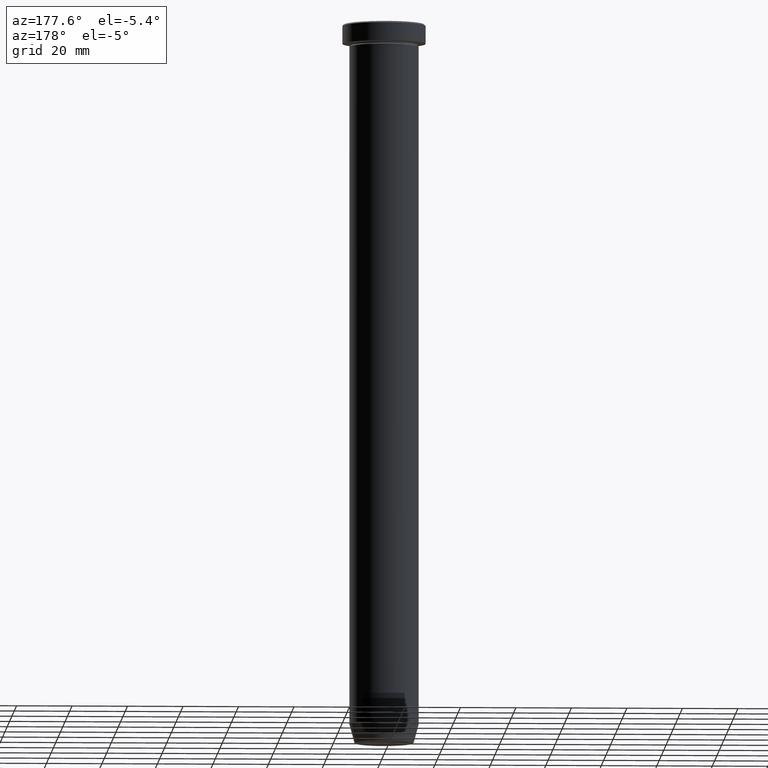
[diagram: clean part render]
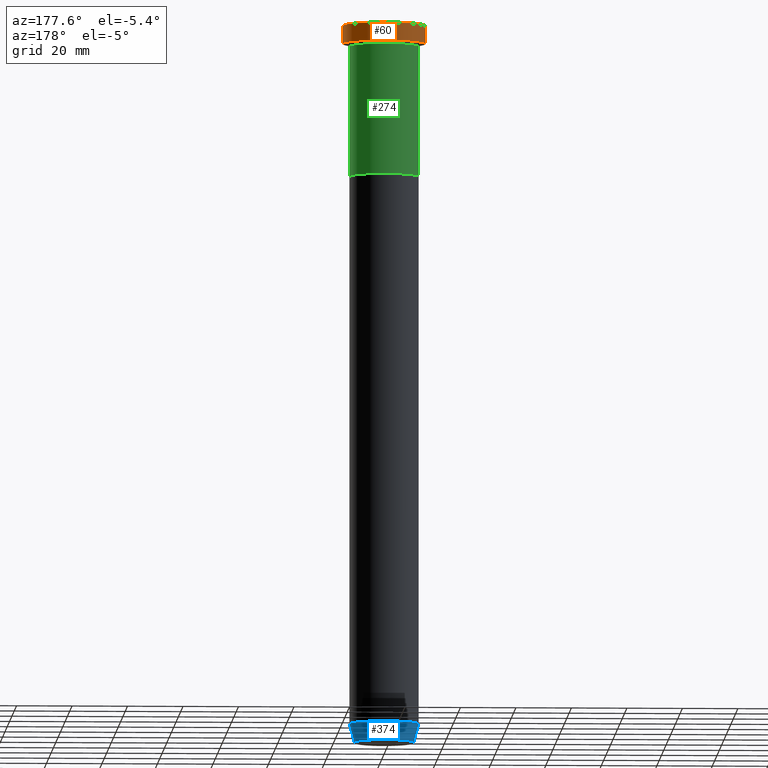
[diagram: same view with three faces highlighted in distinct colors, each labeled with its STEP entity id]
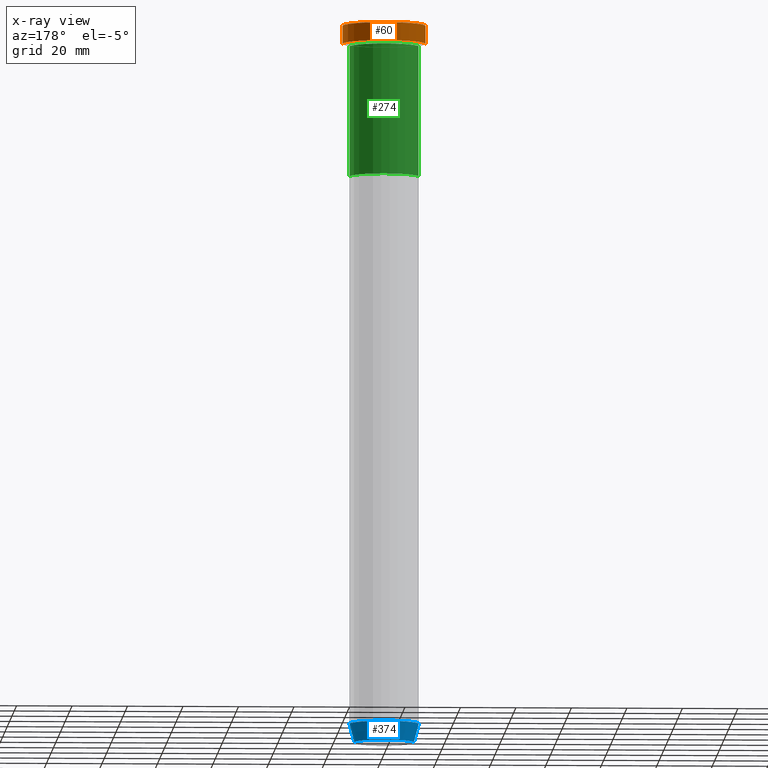
[diagram: x-ray of the same camera — body ghosted, the three highlighted faces saturated]
A machine part, auxiliary view with three faces highlighted in distinct colors.
The next image is the same camera in x-ray (body ghosted, the three faces saturated) — at least one of them is partly hidden behind the body in this view.
Their STEP definitions:

[orange] entity #60 — the highlighted cylindrical surface (partial cylindrical patch) has radius 15 mm, axis along (-0, -0, 1).
#9 = LINE ( 'NONE', #290, #281 ) ;
#20 = ORIENTED_EDGE ( 'NONE', *, *, #498, .T. ) ;
#36 = CARTESIAN_POINT ( 'NONE',  ( 15.00000000000000000, 0.000000000000000000, -0.4999999999999831246 ) ) ;
#40 = CARTESIAN_POINT ( 'NONE',  ( -15.00000000000000000, 1.836970198721029589E-15, -0.4999999999999831246 ) ) ;
#60 = ADVANCED_FACE ( 'NONE', ( #284 ), #525, .T. ) ;
#110 = DIRECTION ( 'NONE',  ( 0.000000000000000000, 0.000000000000000000, -1.000000000000000000 ) ) ;
#117 = ORIENTED_EDGE ( 'NONE', *, *, #188, .F. ) ;
#131 = DIRECTION ( 'NONE',  ( -0.000000000000000000, -0.000000000000000000, 1.000000000000000000 ) ) ;
#172 = VECTOR ( 'NONE', #131, 1000.000000000000000 ) ;
#177 = EDGE_LOOP ( 'NONE', ( #20, #453, #568, #117 ) ) ;
#183 = VERTEX_POINT ( 'NONE', #36 ) ;
#188 = EDGE_CURVE ( 'NONE', #585, #183, #405, .T. ) ;
#228 = CIRCLE ( 'NONE', #563, 15.00000000000000000 ) ;
#238 = EDGE_CURVE ( 'NONE', #382, #353, #9, .T. ) ;
#242 = CARTESIAN_POINT ( 'NONE',  ( 0.000000000000000000, 0.000000000000000000, -6.999999999999999112 ) ) ;
#265 = CARTESIAN_POINT ( 'NONE',  ( 15.00000000000000000, 0.000000000000000000, 0.000000000000000000 ) ) ;
#276 = AXIS2_PLACEMENT_3D ( 'NONE', #242, #386, #569 ) ;
#281 = VECTOR ( 'NONE', #486, 1000.000000000000000 ) ;
#284 = FACE_OUTER_BOUND ( 'NONE', #177, .T. ) ;
#290 = CARTESIAN_POINT ( 'NONE',  ( -15.00000000000000000, 1.836970198721029589E-15, 0.000000000000000000 ) ) ;
#295 = CARTESIAN_POINT ( 'NONE',  ( 0.000000000000000000, 0.000000000000000000, 0.000000000000000000 ) ) ;
#341 = CARTESIAN_POINT ( 'NONE',  ( -15.00000000000000000, 1.836970198721029589E-15, -6.999999999999999112 ) ) ;
#345 = DIRECTION ( 'NONE',  ( 1.000000000000000000, 0.000000000000000000, 0.000000000000000000 ) ) ;
#353 = VERTEX_POINT ( 'NONE', #40 ) ;
#378 = EDGE_CURVE ( 'NONE', #353, #183, #228, .T. ) ;
#382 = VERTEX_POINT ( 'NONE', #341 ) ;
#386 = DIRECTION ( 'NONE',  ( -0.000000000000000000, -0.000000000000000000, 1.000000000000000000 ) ) ;
#405 = LINE ( 'NONE', #265, #172 ) ;
#421 = CIRCLE ( 'NONE', #276, 15.00000000000000000 ) ;
#453 = ORIENTED_EDGE ( 'NONE', *, *, #238, .T. ) ;
#455 = AXIS2_PLACEMENT_3D ( 'NONE', #295, #479, #492 ) ;
#479 = DIRECTION ( 'NONE',  ( -0.000000000000000000, -0.000000000000000000, 1.000000000000000000 ) ) ;
#485 = CARTESIAN_POINT ( 'NONE',  ( 0.000000000000000000, 0.000000000000000000, -0.4999999999999831246 ) ) ;
#486 = DIRECTION ( 'NONE',  ( -0.000000000000000000, -0.000000000000000000, 1.000000000000000000 ) ) ;
#492 = DIRECTION ( 'NONE',  ( 1.000000000000000000, 0.000000000000000000, 0.000000000000000000 ) ) ;
#498 = EDGE_CURVE ( 'NONE', #585, #382, #421, .T. ) ;
#525 = CYLINDRICAL_SURFACE ( 'NONE', #455, 15.00000000000000000 ) ;
#543 = CARTESIAN_POINT ( 'NONE',  ( 15.00000000000000000, 0.000000000000000000, -6.999999999999999112 ) ) ;
#563 = AXIS2_PLACEMENT_3D ( 'NONE', #485, #110, #345 ) ;
#568 = ORIENTED_EDGE ( 'NONE', *, *, #378, .T. ) ;
#569 = DIRECTION ( 'NONE',  ( 1.000000000000000000, 0.000000000000000000, 0.000000000000000000 ) ) ;
#585 = VERTEX_POINT ( 'NONE', #543 ) ;

[blue] entity #374 — the highlighted conical surface has half-angle 15 deg.
#68 = LINE ( 'NONE', #444, #173 ) ;
#89 = VERTEX_POINT ( 'NONE', #441 ) ;
#104 = AXIS2_PLACEMENT_3D ( 'NONE', #363, #267, #229 ) ;
#118 = LINE ( 'NONE', #300, #523 ) ;
#121 = CONICAL_SURFACE ( 'NONE', #415, 10.62435565298213902, 0.2617993877991495744 ) ;
#140 = CIRCLE ( 'NONE', #145, 10.72365507213718949 ) ;
#142 = DIRECTION ( 'NONE',  ( -0.000000000000000000, -0.000000000000000000, 1.000000000000000000 ) ) ;
#145 = AXIS2_PLACEMENT_3D ( 'NONE', #187, #556, #544 ) ;
#147 = ORIENTED_EDGE ( 'NONE', *, *, #311, .F. ) ;
#173 = VECTOR ( 'NONE', #390, 1000.000000000000000 ) ;
#178 = CARTESIAN_POINT ( 'NONE',  ( 0.000000000000000000, 0.000000000000000000, -260.0000000000000000 ) ) ;
#187 = CARTESIAN_POINT ( 'NONE',  ( 0.000000000000000000, 0.000000000000000000, -259.6294095225512706 ) ) ;
#229 = DIRECTION ( 'NONE',  ( 1.000000000000000000, 0.000000000000000000, 0.000000000000000000 ) ) ;
#267 = DIRECTION ( 'NONE',  ( -0.000000000000000000, -0.000000000000000000, 1.000000000000000000 ) ) ;
#300 = CARTESIAN_POINT ( 'NONE',  ( -10.62435565298213902, 1.301108314342766318E-15, -260.0000000000000000 ) ) ;
#311 = EDGE_CURVE ( 'NONE', #89, #391, #68, .T. ) ;
#350 = VERTEX_POINT ( 'NONE', #586 ) ;
#356 = EDGE_CURVE ( 'NONE', #89, #350, #140, .T. ) ;
#363 = CARTESIAN_POINT ( 'NONE',  ( 0.000000000000000000, 0.000000000000000000, -253.0000000000000000 ) ) ;
#374 = ADVANCED_FACE ( 'NONE', ( #409 ), #121, .T. ) ;
#390 = DIRECTION ( 'NONE',  ( 0.2588190451025209060, 0.000000000000000000, 0.9659258262890682012 ) ) ;
#391 = VERTEX_POINT ( 'NONE', #443 ) ;
#409 = FACE_OUTER_BOUND ( 'NONE', #527, .T. ) ;
#415 = AXIS2_PLACEMENT_3D ( 'NONE', #178, #142, #573 ) ;
#438 = ORIENTED_EDGE ( 'NONE', *, *, #356, .T. ) ;
#441 = CARTESIAN_POINT ( 'NONE',  ( 10.72365507213718949, 0.000000000000000000, -259.6294095225512706 ) ) ;
#443 = CARTESIAN_POINT ( 'NONE',  ( 12.50000000000000000, 0.000000000000000000, -253.0000000000000000 ) ) ;
#444 = CARTESIAN_POINT ( 'NONE',  ( 10.62435565298213902, 0.000000000000000000, -260.0000000000000000 ) ) ;
#497 = DIRECTION ( 'NONE',  ( -0.2588190451025209060, 3.169619151431766790E-17, 0.9659258262890682012 ) ) ;
#519 = VERTEX_POINT ( 'NONE', #534 ) ;
#521 = EDGE_CURVE ( 'NONE', #350, #519, #118, .T. ) ;
#523 = VECTOR ( 'NONE', #497, 1000.000000000000000 ) ;
#527 = EDGE_LOOP ( 'NONE', ( #438, #588, #529, #147 ) ) ;
#529 = ORIENTED_EDGE ( 'NONE', *, *, #597, .F. ) ;
#534 = CARTESIAN_POINT ( 'NONE',  ( -12.50000000000000000, 1.530808498934191521E-15, -253.0000000000000000 ) ) ;
#544 = DIRECTION ( 'NONE',  ( -1.000000000000000000, 0.000000000000000000, 0.000000000000000000 ) ) ;
#556 = DIRECTION ( 'NONE',  ( -0.000000000000000000, -0.000000000000000000, 1.000000000000000000 ) ) ;
#573 = DIRECTION ( 'NONE',  ( 1.000000000000000000, 0.000000000000000000, 0.000000000000000000 ) ) ;
#577 = CIRCLE ( 'NONE', #104, 12.50000000000000000 ) ;
#586 = CARTESIAN_POINT ( 'NONE',  ( -10.72365507213718949, 1.422038742429750318E-15, -259.6294095225512706 ) ) ;
#588 = ORIENTED_EDGE ( 'NONE', *, *, #521, .T. ) ;
#597 = EDGE_CURVE ( 'NONE', #391, #519, #577, .T. ) ;

[green] entity #274 — the highlighted cylindrical surface (edge-blend (fillet) strip) has radius 12.5 mm, axis along (-0, -0, 1).
#15 = VERTEX_POINT ( 'NONE', #564 ) ;
#19 = CARTESIAN_POINT ( 'NONE',  ( 0.000000000000000000, 0.000000000000000000, -8.000000000000000000 ) ) ;
#23 = EDGE_CURVE ( 'NONE', #15, #209, #475, .T. ) ;
#24 = LINE ( 'NONE', #66, #190 ) ;
#43 = ORIENTED_EDGE ( 'NONE', *, *, #566, .T. ) ;
#47 = DIRECTION ( 'NONE',  ( 1.000000000000000000, 0.000000000000000000, 0.000000000000000000 ) ) ;
#48 = AXIS2_PLACEMENT_3D ( 'NONE', #387, #153, #342 ) ;
#55 = DIRECTION ( 'NONE',  ( -0.000000000000000000, -0.000000000000000000, 1.000000000000000000 ) ) ;
#66 = CARTESIAN_POINT ( 'NONE',  ( 12.50000000000000000, 0.000000000000000000, 0.000000000000000000 ) ) ;
#81 = ORIENTED_EDGE ( 'NONE', *, *, #23, .F. ) ;
#84 = FACE_OUTER_BOUND ( 'NONE', #256, .T. ) ;
#94 = EDGE_CURVE ( 'NONE', #314, #15, #24, .T. ) ;
#115 = CARTESIAN_POINT ( 'NONE',  ( -12.50000000000000000, 1.530808498934191521E-15, -54.99999999999999289 ) ) ;
#151 = LINE ( 'NONE', #297, #460 ) ;
#153 = DIRECTION ( 'NONE',  ( -0.000000000000000000, -0.000000000000000000, 1.000000000000000000 ) ) ;
#154 = DIRECTION ( 'NONE',  ( 1.000000000000000000, 0.000000000000000000, 0.000000000000000000 ) ) ;
#163 = CARTESIAN_POINT ( 'NONE',  ( 12.50000000000000000, 0.000000000000000000, -54.99999999999999289 ) ) ;
#181 = CARTESIAN_POINT ( 'NONE',  ( 0.000000000000000000, 0.000000000000000000, -54.99999999999999289 ) ) ;
#190 = VECTOR ( 'NONE', #55, 1000.000000000000000 ) ;
#200 = DIRECTION ( 'NONE',  ( -0.000000000000000000, -0.000000000000000000, 1.000000000000000000 ) ) ;
#209 = VERTEX_POINT ( 'NONE', #481 ) ;
#215 = CYLINDRICAL_SURFACE ( 'NONE', #48, 12.50000000000000000 ) ;
#223 = ORIENTED_EDGE ( 'NONE', *, *, #504, .T. ) ;
#256 = EDGE_LOOP ( 'NONE', ( #43, #223, #81, #411 ) ) ;
#274 = ADVANCED_FACE ( 'NONE', ( #84 ), #215, .T. ) ;
#297 = CARTESIAN_POINT ( 'NONE',  ( -12.50000000000000000, 1.530808498934191521E-15, 0.000000000000000000 ) ) ;
#301 = AXIS2_PLACEMENT_3D ( 'NONE', #19, #200, #154 ) ;
#314 = VERTEX_POINT ( 'NONE', #163 ) ;
#342 = DIRECTION ( 'NONE',  ( 1.000000000000000000, 0.000000000000000000, 0.000000000000000000 ) ) ;
#359 = DIRECTION ( 'NONE',  ( -0.000000000000000000, -0.000000000000000000, 1.000000000000000000 ) ) ;
#365 = AXIS2_PLACEMENT_3D ( 'NONE', #181, #359, #47 ) ;
#387 = CARTESIAN_POINT ( 'NONE',  ( 0.000000000000000000, 0.000000000000000000, 0.000000000000000000 ) ) ;
#411 = ORIENTED_EDGE ( 'NONE', *, *, #94, .F. ) ;
#433 = CIRCLE ( 'NONE', #365, 12.50000000000000000 ) ;
#442 = VERTEX_POINT ( 'NONE', #115 ) ;
#460 = VECTOR ( 'NONE', #494, 1000.000000000000000 ) ;
#475 = CIRCLE ( 'NONE', #301, 12.50000000000000000 ) ;
#481 = CARTESIAN_POINT ( 'NONE',  ( -12.50000000000000000, 1.530808498934191521E-15, -8.000000000000000000 ) ) ;
#494 = DIRECTION ( 'NONE',  ( -0.000000000000000000, -0.000000000000000000, 1.000000000000000000 ) ) ;
#504 = EDGE_CURVE ( 'NONE', #442, #209, #151, .T. ) ;
#564 = CARTESIAN_POINT ( 'NONE',  ( 12.50000000000000000, 0.000000000000000000, -8.000000000000000000 ) ) ;
#566 = EDGE_CURVE ( 'NONE', #314, #442, #433, .T. ) ;